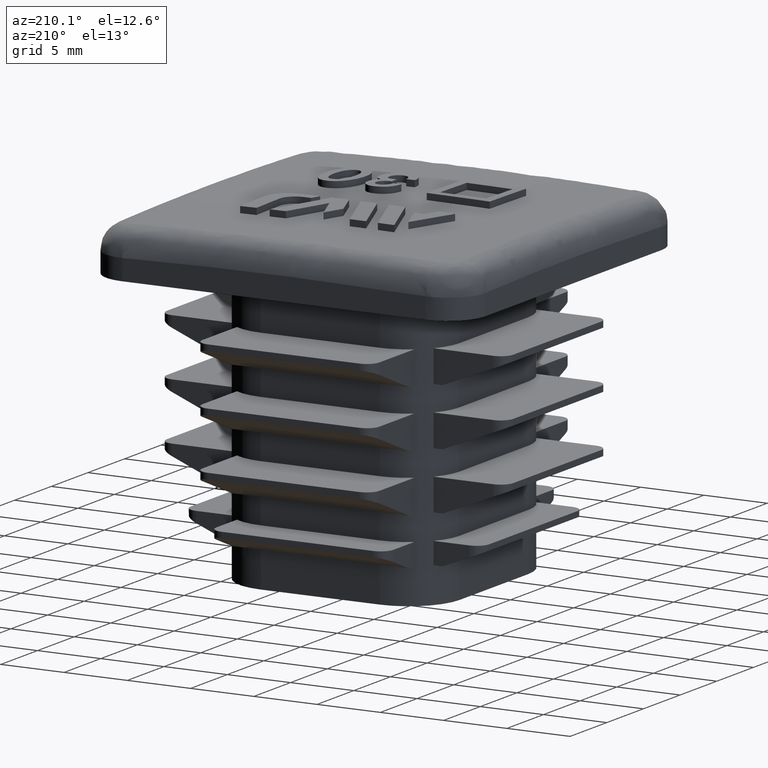
[diagram: clean part render]
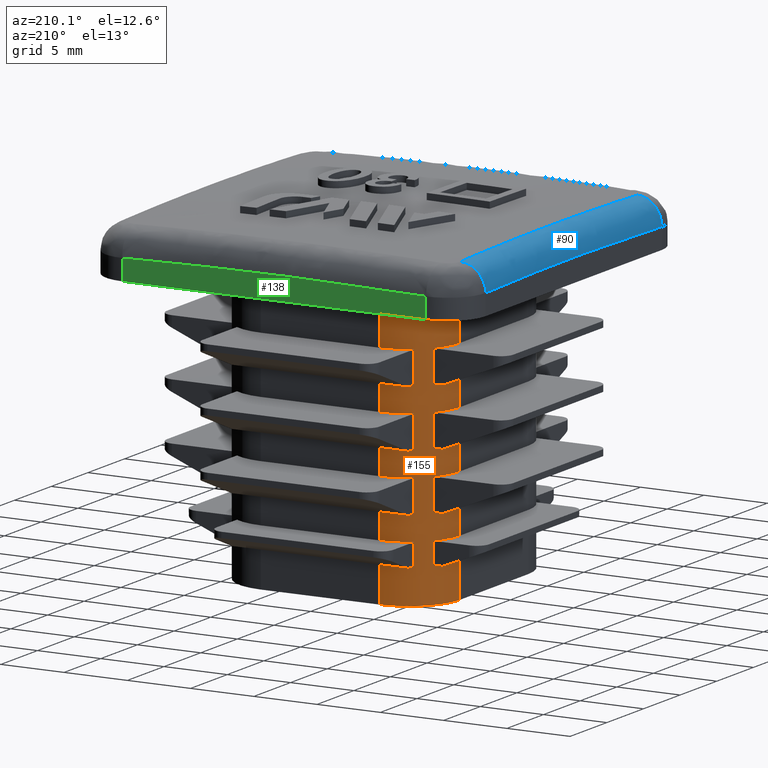
[diagram: same view with three faces highlighted in distinct colors, each labeled with its STEP entity id]
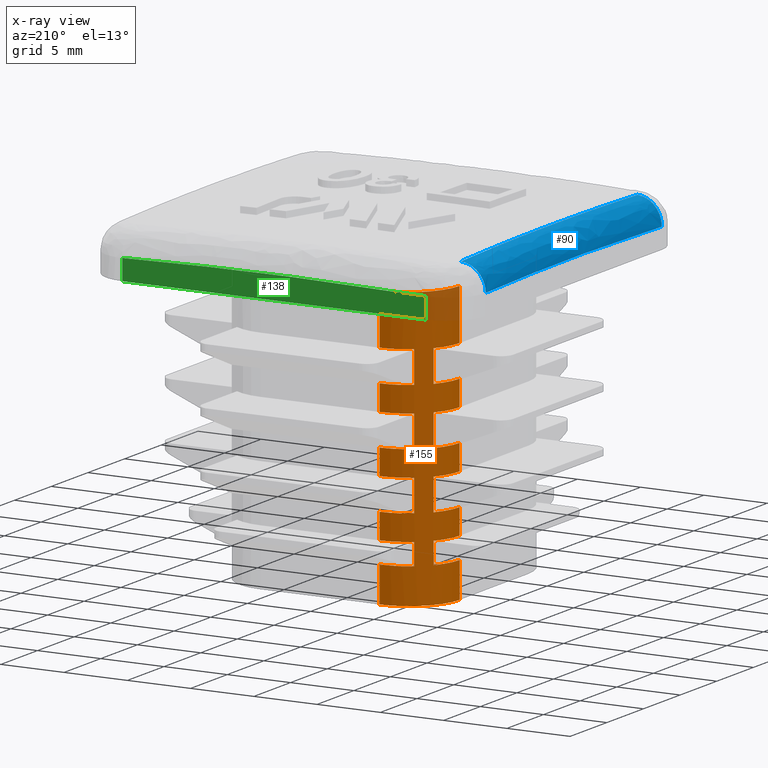
[diagram: x-ray of the same camera — body ghosted, the three highlighted faces saturated]
A machine part, auxiliary view with three faces highlighted in distinct colors.
The next image is the same camera in x-ray (body ghosted, the three faces saturated) — at least one of them is partly hidden behind the body in this view.
Their STEP definitions:

[orange] entity #155 — the highlighted cylindrical surface (partial cylindrical patch) has radius 4 mm, axis along (0, 0, -1).
#155 = ADVANCED_FACE( '', ( #518 ), #519, .T. );
#518 = FACE_OUTER_BOUND( '', #2033, .T. );
#519 = CYLINDRICAL_SURFACE( '', #2034, 4.00000000000000 );
#2033 = EDGE_LOOP( '', ( #3886, #3887, #3888, #3889, #3890, #3891, #3892, #3893, #3894, #3895, #3896, #3897, #3898, #3899, #3900, #3901, #3902, #3903, #3904, #3905, #3906, #3907, #3908, #3909, #3910, #3911, #3912, #3913, #3914, #3915, #3916, #3917, #3918, #3919, #3920, #3921 ) );
#2034 = AXIS2_PLACEMENT_3D( '', #3922, #3923, #3924 );
#3886 = ORIENTED_EDGE( '', *, *, #5648, .F. );
#3887 = ORIENTED_EDGE( '', *, *, #5649, .T. );
#3888 = ORIENTED_EDGE( '', *, *, #5650, .T. );
#3889 = ORIENTED_EDGE( '', *, *, #5651, .T. );
#3890 = ORIENTED_EDGE( '', *, *, #5652, .F. );
#3891 = ORIENTED_EDGE( '', *, *, #5653, .T. );
#3892 = ORIENTED_EDGE( '', *, *, #5654, .T. );
#3893 = ORIENTED_EDGE( '', *, *, #5655, .T. );
#3894 = ORIENTED_EDGE( '', *, *, #5656, .F. );
#3895 = ORIENTED_EDGE( '', *, *, #5657, .T. );
#3896 = ORIENTED_EDGE( '', *, *, #5658, .T. );
#3897 = ORIENTED_EDGE( '', *, *, #5659, .T. );
#3898 = ORIENTED_EDGE( '', *, *, #5660, .F. );
#3899 = ORIENTED_EDGE( '', *, *, #5661, .T. );
#3900 = ORIENTED_EDGE( '', *, *, #5662, .T. );
#3901 = ORIENTED_EDGE( '', *, *, #5663, .T. );
#3902 = ORIENTED_EDGE( '', *, *, #5664, .F. );
#3903 = ORIENTED_EDGE( '', *, *, #5665, .T. );
#3904 = ORIENTED_EDGE( '', *, *, #5666, .T. );
#3905 = ORIENTED_EDGE( '', *, *, #5667, .T. );
#3906 = ORIENTED_EDGE( '', *, *, #5668, .F. );
#3907 = ORIENTED_EDGE( '', *, *, #5669, .T. );
#3908 = ORIENTED_EDGE( '', *, *, #5670, .T. );
#3909 = ORIENTED_EDGE( '', *, *, #5470, .F. );
#3910 = ORIENTED_EDGE( '', *, *, #5671, .F. );
#3911 = ORIENTED_EDGE( '', *, *, #5672, .T. );
#3912 = ORIENTED_EDGE( '', *, *, #5673, .T. );
#3913 = ORIENTED_EDGE( '', *, *, #5674, .T. );
#3914 = ORIENTED_EDGE( '', *, *, #5675, .F. );
#3915 = ORIENTED_EDGE( '', *, *, #5676, .T. );
#3916 = ORIENTED_EDGE( '', *, *, #5677, .T. );
#3917 = ORIENTED_EDGE( '', *, *, #5678, .T. );
#3918 = ORIENTED_EDGE( '', *, *, #5679, .F. );
#3919 = ORIENTED_EDGE( '', *, *, #5680, .T. );
#3920 = ORIENTED_EDGE( '', *, *, #5681, .T. );
#3921 = ORIENTED_EDGE( '', *, *, #5682, .T. );
#3922 = CARTESIAN_POINT( '', ( -4.70000000000000, 4.70000000000000, 0.000000000000000 ) );
#3923 = DIRECTION( '', ( 0.000000000000000, 0.000000000000000, -1.00000000000000 ) );
#3924 = DIRECTION( '', ( 0.000000000000000, -1.00000000000000, 0.000000000000000 ) );
#5470 = EDGE_CURVE( '', #6258, #6245, #6260, .T. );
#5648 = EDGE_CURVE( '', #6550, #6551, #6552, .T. );
#5649 = EDGE_CURVE( '', #6550, #6553, #6554, .F. );
#5650 = EDGE_CURVE( '', #6553, #6555, #6556, .F. );
#5651 = EDGE_CURVE( '', #6555, #6557, #6558, .F. );
#5652 = EDGE_CURVE( '', #6559, #6557, #6560, .T. );
#5653 = EDGE_CURVE( '', #6559, #6561, #6562, .T. );
#5654 = EDGE_CURVE( '', #6561, #6563, #6564, .T. );
#5655 = EDGE_CURVE( '', #6563, #6565, #6566, .F. );
#5656 = EDGE_CURVE( '', #6567, #6565, #6568, .F. );
#5657 = EDGE_CURVE( '', #6567, #6569, #6570, .F. );
#5658 = EDGE_CURVE( '', #6569, #6571, #6572, .T. );
#5659 = EDGE_CURVE( '', #6571, #6573, #6574, .F. );
#5660 = EDGE_CURVE( '', #6575, #6573, #6576, .F. );
#5661 = EDGE_CURVE( '', #6575, #6577, #6578, .F. );
#5662 = EDGE_CURVE( '', #6577, #6579, #6580, .T. );
#5663 = EDGE_CURVE( '', #6579, #6581, #6582, .F. );
#5664 = EDGE_CURVE( '', #6583, #6581, #6584, .F. );
#5665 = EDGE_CURVE( '', #6583, #6585, #6586, .F. );
#5666 = EDGE_CURVE( '', #6585, #6587, #6588, .T. );
#5667 = EDGE_CURVE( '', #6587, #6589, #6590, .F. );
#5668 = EDGE_CURVE( '', #6591, #6589, #6592, .F. );
#5669 = EDGE_CURVE( '', #6591, #6593, #6594, .F. );
#5670 = EDGE_CURVE( '', #6593, #6245, #6595, .T. );
#5671 = EDGE_CURVE( '', #6596, #6258, #6597, .T. );
#5672 = EDGE_CURVE( '', #6596, #6598, #6599, .F. );
#5673 = EDGE_CURVE( '', #6598, #6600, #6601, .F. );
#5674 = EDGE_CURVE( '', #6600, #6602, #6603, .F. );
#5675 = EDGE_CURVE( '', #6604, #6602, #6605, .T. );
#5676 = EDGE_CURVE( '', #6604, #6606, #6607, .F. );
#5677 = EDGE_CURVE( '', #6606, #6608, #6609, .F. );
#5678 = EDGE_CURVE( '', #6608, #6610, #6611, .F. );
#5679 = EDGE_CURVE( '', #6612, #6610, #6613, .T. );
#5680 = EDGE_CURVE( '', #6612, #6614, #6615, .F. );
#5681 = EDGE_CURVE( '', #6614, #6616, #6617, .F. );
#5682 = EDGE_CURVE( '', #6616, #6551, #6618, .F. );
#6245 = VERTEX_POINT( '', #8303 );
#6258 = VERTEX_POINT( '', #8319 );
#6260 = CIRCLE( '', #8322, 4.00000000000000 );
#6550 = VERTEX_POINT( '', #9027 );
#6551 = VERTEX_POINT( '', #9028 );
#6552 = LINE( '', #9029, #9030 );
#6553 = VERTEX_POINT( '', #9031 );
#6554 = CIRCLE( '', #9032, 4.00000000000000 );
#6555 = VERTEX_POINT( '', #9033 );
#6556 = LINE( '', #9034, #9035 );
#6557 = VERTEX_POINT( '', #9036 );
#6558 = CIRCLE( '', #9037, 4.00000000000000 );
#6559 = VERTEX_POINT( '', #9038 );
#6560 = LINE( '', #9039, #9040 );
#6561 = VERTEX_POINT( '', #9041 );
#6562 = CIRCLE( '', #9042, 4.00000000000000 );
#6563 = VERTEX_POINT( '', #9043 );
#6564 = LINE( '', #9044, #9045 );
#6565 = VERTEX_POINT( '', #9046 );
#6566 = CIRCLE( '', #9047, 4.00000000000000 );
#6567 = VERTEX_POINT( '', #9048 );
#6568 = LINE( '', #9049, #9050 );
#6569 = VERTEX_POINT( '', #9051 );
#6570 = CIRCLE( '', #9052, 4.00000000000000 );
#6571 = VERTEX_POINT( '', #9053 );
#6572 = LINE( '', #9054, #9055 );
#6573 = VERTEX_POINT( '', #9056 );
#6574 = CIRCLE( '', #9057, 4.00000000000000 );
#6575 = VERTEX_POINT( '', #9058 );
#6576 = LINE( '', #9059, #9060 );
#6577 = VERTEX_POINT( '', #9061 );
#6578 = CIRCLE( '', #9062, 4.00000000000000 );
#6579 = VERTEX_POINT( '', #9063 );
#6580 = LINE( '', #9064, #9065 );
#6581 = VERTEX_POINT( '', #9066 );
#6582 = CIRCLE( '', #9067, 4.00000000000000 );
#6583 = VERTEX_POINT( '', #9068 );
#6584 = LINE( '', #9069, #9070 );
#6585 = VERTEX_POINT( '', #9071 );
#6586 = CIRCLE( '', #9072, 4.00000000000000 );
#6587 = VERTEX_POINT( '', #9073 );
#6588 = LINE( '', #9074, #9075 );
#6589 = VERTEX_POINT( '', #9076 );
#6590 = CIRCLE( '', #9077, 4.00000000000000 );
#6591 = VERTEX_POINT( '', #9078 );
#6592 = LINE( '', #9079, #9080 );
#6593 = VERTEX_POINT( '', #9081 );
#6594 = CIRCLE( '', #9082, 4.00000000000000 );
#6595 = LINE( '', #9083, #9084 );
#6596 = VERTEX_POINT( '', #9085 );
#6597 = LINE( '', #9086, #9087 );
#6598 = VERTEX_POINT( '', #9088 );
#6599 = CIRCLE( '', #9089, 4.00000000000000 );
#6600 = VERTEX_POINT( '', #9090 );
#6601 = LINE( '', #9091, #9092 );
#6602 = VERTEX_POINT( '', #9093 );
#6603 = CIRCLE( '', #9094, 4.00000000000000 );
#6604 = VERTEX_POINT( '', #9095 );
#6605 = LINE( '', #9096, #9097 );
#6606 = VERTEX_POINT( '', #9098 );
#6607 = CIRCLE( '', #9099, 4.00000000000000 );
#6608 = VERTEX_POINT( '', #9100 );
#6609 = LINE( '', #9101, #9102 );
#6610 = VERTEX_POINT( '', #9103 );
#6611 = CIRCLE( '', #9104, 4.00000000000000 );
#6612 = VERTEX_POINT( '', #9105 );
#6613 = LINE( '', #9106, #9107 );
#6614 = VERTEX_POINT( '', #9108 );
#6615 = CIRCLE( '', #9109, 4.00000000000000 );
#6616 = VERTEX_POINT( '', #9110 );
#6617 = LINE( '', #9111, #9112 );
#6618 = CIRCLE( '', #9113, 4.00000000000000 );
#8303 = CARTESIAN_POINT( '', ( -8.70000000000000, 4.70000000000000, 22.0000000000000 ) );
#8319 = CARTESIAN_POINT( '', ( -4.70000000000000, 8.70000000000000, 22.0000000000000 ) );
#8322 = AXIS2_PLACEMENT_3D( '', #10409, #10410, #10411 );
#9027 = CARTESIAN_POINT( '', ( -4.70000000000000, 8.70000000000000, 4.49999999999999 ) );
#9028 = CARTESIAN_POINT( '', ( -4.70000000000000, 8.70000000000004, 6.50000000000002 ) );
#9029 = CARTESIAN_POINT( '', ( -4.70000000000000, 8.70000000000000, 0.000000000000000 ) );
#9030 = VECTOR( '', #10641, 1000.00000000000 );
#9031 = CARTESIAN_POINT( '', ( -7.00000000000000, 7.97261363439071, 4.49999999999999 ) );
#9032 = AXIS2_PLACEMENT_3D( '', #10642, #10643, #10644 );
#9033 = CARTESIAN_POINT( '', ( -7.00000000000000, 7.97261363439071, 2.80000000000000 ) );
#9034 = CARTESIAN_POINT( '', ( -7.00000000000000, 7.97261363439071, 0.000000000000000 ) );
#9035 = VECTOR( '', #10645, 1000.00000000000 );
#9036 = CARTESIAN_POINT( '', ( -4.70000000000000, 8.70000000000000, 2.80000000000000 ) );
#9037 = AXIS2_PLACEMENT_3D( '', #10646, #10647, #10648 );
#9038 = CARTESIAN_POINT( '', ( -4.70000000000000, 8.70000000000000, 0.000000000000000 ) );
#9039 = CARTESIAN_POINT( '', ( -4.70000000000000, 8.70000000000000, 0.000000000000000 ) );
#9040 = VECTOR( '', #10649, 1000.00000000000 );
#9041 = CARTESIAN_POINT( '', ( -8.70000000000000, 4.70000000000000, 0.000000000000000 ) );
#9042 = AXIS2_PLACEMENT_3D( '', #10650, #10651, #10652 );
#9043 = CARTESIAN_POINT( '', ( -8.70000000000000, 4.70000000000000, 2.80000000000000 ) );
#9044 = CARTESIAN_POINT( '', ( -8.70000000000000, 4.70000000000000, 0.000000000000000 ) );
#9045 = VECTOR( '', #10653, 1000.00000000000 );
#9046 = CARTESIAN_POINT( '', ( -7.97261363439071, 7.00000000000000, 2.80000000000000 ) );
#9047 = AXIS2_PLACEMENT_3D( '', #10654, #10655, #10656 );
#9048 = CARTESIAN_POINT( '', ( -7.97261363439071, 7.00000000000000, 4.49999999999999 ) );
#9049 = CARTESIAN_POINT( '', ( -7.97261363439071, 7.00000000000000, 0.000000000000000 ) );
#9050 = VECTOR( '', #10657, 1000.00000000000 );
#9051 = CARTESIAN_POINT( '', ( -8.70000000000000, 4.70000000000000, 4.49999999999999 ) );
#9052 = AXIS2_PLACEMENT_3D( '', #10658, #10659, #10660 );
#9053 = CARTESIAN_POINT( '', ( -8.70000000000004, 4.70000000000000, 6.50000000000002 ) );
#9054 = CARTESIAN_POINT( '', ( -8.70000000000000, 4.70000000000000, 0.000000000000000 ) );
#9055 = VECTOR( '', #10661, 1000.00000000000 );
#9056 = CARTESIAN_POINT( '', ( -7.97261363439072, 7.00000000000000, 6.50000000000000 ) );
#9057 = AXIS2_PLACEMENT_3D( '', #10662, #10663, #10664 );
#9058 = CARTESIAN_POINT( '', ( -7.97261363439072, 7.00000000000000, 9.00000000000001 ) );
#9059 = CARTESIAN_POINT( '', ( -7.97261363439072, 7.00000000000000, 0.000000000000000 ) );
#9060 = VECTOR( '', #10665, 1000.00000000000 );
#9061 = CARTESIAN_POINT( '', ( -8.70000000000000, 4.70000000000000, 9.00000000000001 ) );
#9062 = AXIS2_PLACEMENT_3D( '', #10666, #10667, #10668 );
#9063 = CARTESIAN_POINT( '', ( -8.70000000000002, 4.70000000000000, 11.0000000000000 ) );
#9064 = CARTESIAN_POINT( '', ( -8.70000000000000, 4.70000000000000, 0.000000000000000 ) );
#9065 = VECTOR( '', #10669, 1000.00000000000 );
#9066 = CARTESIAN_POINT( '', ( -7.97261363439072, 7.00000000000000, 11.0000000000000 ) );
#9067 = AXIS2_PLACEMENT_3D( '', #10670, #10671, #10672 );
#9068 = CARTESIAN_POINT( '', ( -7.97261363439072, 7.00000000000000, 13.5000000000000 ) );
#9069 = CARTESIAN_POINT( '', ( -7.97261363439072, 7.00000000000000, 0.000000000000000 ) );
#9070 = VECTOR( '', #10673, 1000.00000000000 );
#9071 = CARTESIAN_POINT( '', ( -8.70000000000000, 4.70000000000000, 13.5000000000000 ) );
#9072 = AXIS2_PLACEMENT_3D( '', #10674, #10675, #10676 );
#9073 = CARTESIAN_POINT( '', ( -8.70000000000004, 4.70000000000000, 15.5000000000000 ) );
#9074 = CARTESIAN_POINT( '', ( -8.70000000000000, 4.70000000000000, 0.000000000000000 ) );
#9075 = VECTOR( '', #10677, 1000.00000000000 );
#9076 = CARTESIAN_POINT( '', ( -7.97261363439071, 7.00000000000000, 15.5000000000000 ) );
#9077 = AXIS2_PLACEMENT_3D( '', #10678, #10679, #10680 );
#9078 = CARTESIAN_POINT( '', ( -7.97261363439071, 7.00000000000000, 18.0000000000000 ) );
#9079 = CARTESIAN_POINT( '', ( -7.97261363439071, 7.00000000000000, 0.000000000000000 ) );
#9080 = VECTOR( '', #10681, 1000.00000000000 );
#9081 = CARTESIAN_POINT( '', ( -8.70000000000000, 4.70000000000000, 18.0000000000000 ) );
#9082 = AXIS2_PLACEMENT_3D( '', #10682, #10683, #10684 );
#9083 = CARTESIAN_POINT( '', ( -8.70000000000000, 4.70000000000000, 0.000000000000000 ) );
#9084 = VECTOR( '', #10685, 1000.00000000000 );
#9085 = CARTESIAN_POINT( '', ( -4.70000000000000, 8.70000000000000, 18.0000000000000 ) );
#9086 = CARTESIAN_POINT( '', ( -4.70000000000000, 8.70000000000000, 0.000000000000000 ) );
#9087 = VECTOR( '', #10686, 1000.00000000000 );
#9088 = CARTESIAN_POINT( '', ( -7.00000000000000, 7.97261363439071, 18.0000000000000 ) );
#9089 = AXIS2_PLACEMENT_3D( '', #10687, #10688, #10689 );
#9090 = CARTESIAN_POINT( '', ( -7.00000000000000, 7.97261363439071, 15.5000000000000 ) );
#9091 = CARTESIAN_POINT( '', ( -7.00000000000000, 7.97261363439071, 0.000000000000000 ) );
#9092 = VECTOR( '', #10690, 1000.00000000000 );
#9093 = CARTESIAN_POINT( '', ( -4.70000000000000, 8.70000000000004, 15.5000000000000 ) );
#9094 = AXIS2_PLACEMENT_3D( '', #10691, #10692, #10693 );
#9095 = CARTESIAN_POINT( '', ( -4.70000000000000, 8.70000000000000, 13.5000000000000 ) );
#9096 = CARTESIAN_POINT( '', ( -4.70000000000000, 8.70000000000000, 0.000000000000000 ) );
#9097 = VECTOR( '', #10694, 1000.00000000000 );
#9098 = CARTESIAN_POINT( '', ( -7.00000000000000, 7.97261363439071, 13.5000000000000 ) );
#9099 = AXIS2_PLACEMENT_3D( '', #10695, #10696, #10697 );
#9100 = CARTESIAN_POINT( '', ( -7.00000000000000, 7.97261363439071, 11.0000000000000 ) );
#9101 = CARTESIAN_POINT( '', ( -7.00000000000000, 7.97261363439071, 0.000000000000000 ) );
#9102 = VECTOR( '', #10698, 1000.00000000000 );
#9103 = CARTESIAN_POINT( '', ( -4.70000000000000, 8.70000000000002, 11.0000000000000 ) );
#9104 = AXIS2_PLACEMENT_3D( '', #10699, #10700, #10701 );
#9105 = CARTESIAN_POINT( '', ( -4.70000000000000, 8.70000000000000, 9.00000000000001 ) );
#9106 = CARTESIAN_POINT( '', ( -4.70000000000000, 8.70000000000000, 0.000000000000000 ) );
#9107 = VECTOR( '', #10702, 1000.00000000000 );
#9108 = CARTESIAN_POINT( '', ( -7.00000000000000, 7.97261363439071, 9.00000000000001 ) );
#9109 = AXIS2_PLACEMENT_3D( '', #10703, #10704, #10705 );
#9110 = CARTESIAN_POINT( '', ( -7.00000000000000, 7.97261363439071, 6.50000000000000 ) );
#9111 = CARTESIAN_POINT( '', ( -7.00000000000000, 7.97261363439071, 0.000000000000000 ) );
#9112 = VECTOR( '', #10706, 1000.00000000000 );
#9113 = AXIS2_PLACEMENT_3D( '', #10707, #10708, #10709 );
#10409 = CARTESIAN_POINT( '', ( -4.70000000000000, 4.70000000000000, 22.0000000000000 ) );
#10410 = DIRECTION( '', ( 0.000000000000000, 0.000000000000000, 1.00000000000000 ) );
#10411 = DIRECTION( '', ( 2.16840434497101E-016, 1.00000000000000, 0.000000000000000 ) );
#10641 = DIRECTION( '', ( 0.000000000000000, 0.000000000000000, 1.00000000000000 ) );
#10642 = CARTESIAN_POINT( '', ( -4.70000000000000, 4.70000000000000, 4.49999999999999 ) );
#10643 = DIRECTION( '', ( 8.62816615085482E-032, -6.12303176911189E-017, -1.00000000000000 ) );
#10644 = DIRECTION( '', ( 0.000000000000000, 1.00000000000000, -6.12303176911189E-017 ) );
#10645 = DIRECTION( '', ( 0.000000000000000, 0.000000000000000, 1.00000000000000 ) );
#10646 = CARTESIAN_POINT( '', ( -4.70000000000000, 4.70000000000000, 2.80000000000000 ) );
#10647 = DIRECTION( '', ( -8.62816615085482E-032, 6.12303176911189E-017, 1.00000000000000 ) );
#10648 = DIRECTION( '', ( 0.000000000000000, -1.00000000000000, 6.12303176911189E-017 ) );
#10649 = DIRECTION( '', ( 0.000000000000000, 0.000000000000000, 1.00000000000000 ) );
#10650 = CARTESIAN_POINT( '', ( -4.70000000000000, 4.70000000000000, 0.000000000000000 ) );
#10651 = DIRECTION( '', ( 0.000000000000000, 0.000000000000000, 1.00000000000000 ) );
#10652 = DIRECTION( '', ( 2.16840434497101E-016, 1.00000000000000, 0.000000000000000 ) );
#10653 = DIRECTION( '', ( 0.000000000000000, 0.000000000000000, 1.00000000000000 ) );
#10654 = CARTESIAN_POINT( '', ( -4.70000000000000, 4.70000000000000, 2.80000000000000 ) );
#10655 = DIRECTION( '', ( -7.49830360911070E-033, 6.12303176911188E-017, 1.00000000000000 ) );
#10656 = DIRECTION( '', ( 0.000000000000000, -1.00000000000000, 6.12303176911188E-017 ) );
#10657 = DIRECTION( '', ( 0.000000000000000, 0.000000000000000, 1.00000000000000 ) );
#10658 = CARTESIAN_POINT( '', ( -4.70000000000000, 4.70000000000000, 4.49999999999999 ) );
#10659 = DIRECTION( '', ( 7.49830360911070E-033, -6.12303176911188E-017, -1.00000000000000 ) );
#10660 = DIRECTION( '', ( 0.000000000000000, 1.00000000000000, -6.12303176911188E-017 ) );
#10661 = DIRECTION( '', ( 0.000000000000000, 0.000000000000000, 1.00000000000000 ) );
#10662 = CARTESIAN_POINT( '', ( -4.70000000000000, 4.70000000000000, 6.50000000000000 ) );
#10663 = DIRECTION( '', ( -7.49830360911070E-033, 6.12303176911188E-017, 1.00000000000000 ) );
#10664 = DIRECTION( '', ( 0.000000000000000, -1.00000000000000, 6.12303176911188E-017 ) );
#10665 = DIRECTION( '', ( 0.000000000000000, 0.000000000000000, 1.00000000000000 ) );
#10666 = CARTESIAN_POINT( '', ( -4.70000000000000, 4.70000000000000, 9.00000000000001 ) );
#10667 = DIRECTION( '', ( 7.49830360911070E-033, -6.12303176911188E-017, -1.00000000000000 ) );
#10668 = DIRECTION( '', ( 0.000000000000000, 1.00000000000000, -6.12303176911188E-017 ) );
#10669 = DIRECTION( '', ( 0.000000000000000, 0.000000000000000, 1.00000000000000 ) );
#10670 = CARTESIAN_POINT( '', ( -4.70000000000000, 4.70000000000000, 11.0000000000000 ) );
#10671 = DIRECTION( '', ( -7.49830360911070E-033, 6.12303176911188E-017, 1.00000000000000 ) );
#10672 = DIRECTION( '', ( 0.000000000000000, -1.00000000000000, 6.12303176911188E-017 ) );
#10673 = DIRECTION( '', ( 0.000000000000000, 0.000000000000000, 1.00000000000000 ) );
#10674 = CARTESIAN_POINT( '', ( -4.70000000000000, 4.70000000000000, 13.5000000000000 ) );
#10675 = DIRECTION( '', ( 7.49830360911070E-033, -6.12303176911188E-017, -1.00000000000000 ) );
#10676 = DIRECTION( '', ( 0.000000000000000, 1.00000000000000, -6.12303176911188E-017 ) );
#10677 = DIRECTION( '', ( 0.000000000000000, 0.000000000000000, 1.00000000000000 ) );
#10678 = CARTESIAN_POINT( '', ( -4.70000000000000, 4.70000000000000, 15.5000000000000 ) );
#10679 = DIRECTION( '', ( -7.49830360911070E-033, 6.12303176911188E-017, 1.00000000000000 ) );
#10680 = DIRECTION( '', ( 0.000000000000000, -1.00000000000000, 6.12303176911188E-017 ) );
#10681 = DIRECTION( '', ( 0.000000000000000, 0.000000000000000, 1.00000000000000 ) );
#10682 = CARTESIAN_POINT( '', ( -4.70000000000000, 4.70000000000000, 18.0000000000000 ) );
#10683 = DIRECTION( '', ( 7.49830360911070E-033, -6.12303176911188E-017, -1.00000000000000 ) );
#10684 = DIRECTION( '', ( 0.000000000000000, 1.00000000000000, -6.12303176911188E-017 ) );
#10685 = DIRECTION( '', ( 0.000000000000000, 0.000000000000000, 1.00000000000000 ) );
#10686 = DIRECTION( '', ( 0.000000000000000, 0.000000000000000, 1.00000000000000 ) );
#10687 = CARTESIAN_POINT( '', ( -4.70000000000000, 4.70000000000000, 18.0000000000000 ) );
#10688 = DIRECTION( '', ( 8.62816615085482E-032, -6.12303176911189E-017, -1.00000000000000 ) );
#10689 = DIRECTION( '', ( 0.000000000000000, 1.00000000000000, -6.12303176911189E-017 ) );
#10690 = DIRECTION( '', ( 0.000000000000000, 0.000000000000000, 1.00000000000000 ) );
#10691 = CARTESIAN_POINT( '', ( -4.70000000000000, 4.70000000000000, 15.5000000000000 ) );
#10692 = DIRECTION( '', ( -8.62816615085482E-032, 6.12303176911189E-017, 1.00000000000000 ) );
#10693 = DIRECTION( '', ( 0.000000000000000, -1.00000000000000, 6.12303176911189E-017 ) );
#10694 = DIRECTION( '', ( 0.000000000000000, 0.000000000000000, 1.00000000000000 ) );
#10695 = CARTESIAN_POINT( '', ( -4.70000000000000, 4.70000000000000, 13.5000000000000 ) );
#10696 = DIRECTION( '', ( 8.62816615085482E-032, -6.12303176911189E-017, -1.00000000000000 ) );
#10697 = DIRECTION( '', ( 0.000000000000000, 1.00000000000000, -6.12303176911189E-017 ) );
#10698 = DIRECTION( '', ( 0.000000000000000, 0.000000000000000, 1.00000000000000 ) );
#10699 = CARTESIAN_POINT( '', ( -4.70000000000000, 4.70000000000000, 11.0000000000000 ) );
#10700 = DIRECTION( '', ( -8.62816615085482E-032, 6.12303176911189E-017, 1.00000000000000 ) );
#10701 = DIRECTION( '', ( 0.000000000000000, -1.00000000000000, 6.12303176911189E-017 ) );
#10702 = DIRECTION( '', ( 0.000000000000000, 0.000000000000000, 1.00000000000000 ) );
#10703 = CARTESIAN_POINT( '', ( -4.70000000000000, 4.70000000000000, 9.00000000000001 ) );
#10704 = DIRECTION( '', ( 8.62816615085482E-032, -6.12303176911189E-017, -1.00000000000000 ) );
#10705 = DIRECTION( '', ( 0.000000000000000, 1.00000000000000, -6.12303176911189E-017 ) );
#10706 = DIRECTION( '', ( 0.000000000000000, 0.000000000000000, 1.00000000000000 ) );
#10707 = CARTESIAN_POINT( '', ( -4.70000000000000, 4.70000000000000, 6.50000000000000 ) );
#10708 = DIRECTION( '', ( -8.62816615085482E-032, 6.12303176911189E-017, 1.00000000000000 ) );
#10709 = DIRECTION( '', ( 0.000000000000000, -1.00000000000000, 6.12303176911189E-017 ) );

[blue] entity #90 — the highlighted face is a freeform B-spline surface patch.
#90 = ADVANCED_FACE( '', ( #386 ), #387, .T. );
#386 = FACE_OUTER_BOUND( '', #1084, .T. );
#387 = ( B_SPLINE_SURFACE( 3, 2, ( ( #1086, #1087, #1088 ), ( #1089, #1090, #1091 ), ( #1092, #1093, #1094 ), ( #1095, #1096, #1097 ), ( #1098, #1099, #1100 ), ( #1101, #1102, #1103 ), ( #1104, #1105, #1106 ), ( #1107, #1108, #1109 ), ( #1110, #1111, #1112 ), ( #1113, #1114, #1115 ), ( #1116, #1117, #1118 ), ( #1119, #1120, #1121 ) ), .UNSPECIFIED., .F., .F., .F. )B_SPLINE_SURFACE_WITH_KNOTS( ( 4, 2, 2, 2, 2, 4 ), ( 3, 3 ), ( 0.000000000000000, 0.00600017704993037, 0.0120003540998607, 0.0150004426248259, 0.0180005311497911, 0.0240007081997215 ), ( 0.000000000000000, 1.00000000000000 ), .UNSPECIFIED. )RATIONAL_B_SPLINE_SURFACE( ( ( 1.00000000000000, 0.718173196535329, 1.00000000000000 ), ( 1.00000000000000, 0.718143772612689, 1.00000000000000 ), ( 1.00000000000000, 0.718109651975224, 1.00000000000000 ), ( 1.00000000000000, 0.718053353490006, 1.00000000000000 ), ( 1.00000000000000, 0.718032744471590, 1.00000000000000 ), ( 1.00000000000000, 0.718032744471590, 1.00000000000000 ), ( 1.00000000000000, 0.718037607021252, 1.00000000000000 ), ( 1.00000000000000, 0.718055003589058, 1.00000000000000 ), ( 1.00000000000000, 0.718067417675483, 1.00000000000000 ), ( 1.00000000000000, 0.718109647988902, 1.00000000000000 ), ( 1.00000000000000, 0.718143773229654, 1.00000000000000 ), ( 1.00000000000000, 0.718173196535328, 1.00000000000000 ) ) )BOUNDED_SURFACE(  )REPRESENTATION_ITEM( '' )GEOMETRIC_REPRESENTATION_ITEM(  )SURFACE(  ) );
#1084 = EDGE_LOOP( '', ( #3350, #3351, #3352, #3353 ) );
#1086 = CARTESIAN_POINT( '', ( -15.0000000000000, 12.0000000000000, 23.6335265275817 ) );
#1087 = CARTESIAN_POINT( '', ( -15.0000000000000, 12.0564568515434, 25.5705774477245 ) );
#1088 = CARTESIAN_POINT( '', ( -13.0630909608871, 12.0582378100496, 25.6316826496440 ) );
#1089 = CARTESIAN_POINT( '', ( -15.0000000000000, 10.0003267724881, 23.6918085549560 ) );
#1090 = CARTESIAN_POINT( '', ( -15.0000000000104, 10.0472257041456, 25.6293043573864 ) );
#1091 = CARTESIAN_POINT( '', ( -13.0629195634226, 10.0487002031787, 25.6902575937011 ) );
#1092 = CARTESIAN_POINT( '', ( -15.0000000000000, 8.00054077741846, 23.7352673322333 ) );
#1093 = CARTESIAN_POINT( '', ( -14.9999999999965, 8.03794665685296, 25.6731567749510 ) );
#1094 = CARTESIAN_POINT( '', ( -13.0627258858686, 8.03911905504669, 25.7339347146684 ) );
#1095 = CARTESIAN_POINT( '', ( -15.0000000000000, 4.00074684231143, 23.7930564127972 ) );
#1096 = CARTESIAN_POINT( '', ( -15.0000000000035, 4.01934673143844, 25.7315313560091 ) );
#1097 = CARTESIAN_POINT( '', ( -13.0624024706653, 4.01992631068884, 25.7920141925261 ) );
#1098 = CARTESIAN_POINT( '', ( -15.0000000000000, 2.00073916068089, 23.8074128812085 ) );
#1099 = CARTESIAN_POINT( '', ( -15.0000000000035, 2.01003536667221, 25.7460690656101 ) );
#1100 = CARTESIAN_POINT( '', ( -13.0622841109361, 2.01032486953078, 25.8064428040089 ) );
#1101 = CARTESIAN_POINT( '', ( -15.0000000000000, -0.999436324329904, 23.8074173548970 ) );
#1102 = CARTESIAN_POINT( '', ( -14.9999999999983, -1.00408009105810, 25.7460735926965 ) );
#1103 = CARTESIAN_POINT( '', ( -13.0622840773324, -1.00422470744715, 25.8064473002291 ) );
#1104 = CARTESIAN_POINT( '', ( -15.0000000000000, -1.99952218369607, 23.8038255805832 ) );
#1105 = CARTESIAN_POINT( '', ( -15.0000000000017, -2.00881316078348, 25.7424380453099 ) );
#1106 = CARTESIAN_POINT( '', ( -13.0623120200855, -2.00910251405255, 25.8028374767597 ) );
#1107 = CARTESIAN_POINT( '', ( -15.0000000000000, -3.99974884747071, 23.7894270965710 ) );
#1108 = CARTESIAN_POINT( '', ( -14.9999999999983, -4.01836660654618, 25.7278754629308 ) );
#1109 = CARTESIAN_POINT( '', ( -13.0624119524136, -4.01894747538753, 25.7883666385994 ) );
#1110 = CARTESIAN_POINT( '', ( -15.0000000000000, -4.99990744285938, 23.7786190966047 ) );
#1111 = CARTESIAN_POINT( '', ( -14.9999999999983, -5.02320513365903, 25.7169477695408 ) );
#1112 = CARTESIAN_POINT( '', ( -13.0624832645144, -5.02393280141354, 25.7775043270545 ) );
#1113 = CARTESIAN_POINT( '', ( -15.0000000000000, -8.00035043795834, 23.7352729397983 ) );
#1114 = CARTESIAN_POINT( '', ( -15.0000000000035, -8.03775540543837, 25.6731624313387 ) );
#1115 = CARTESIAN_POINT( '', ( -13.0627258629716, -8.03892777433726, 25.7339403503632 ) );
#1116 = CARTESIAN_POINT( '', ( -15.0000000000000, -10.0003338321923, 23.6918083491886 ) );
#1117 = CARTESIAN_POINT( '', ( -14.9999999999861, -10.0472327980091, 25.6293041500463 ) );
#1118 = CARTESIAN_POINT( '', ( -13.0629195640261, -10.0487072980613, 25.6902573868962 ) );
#1119 = CARTESIAN_POINT( '', ( -15.0000000000000, -12.0000000000000, 23.6335265275817 ) );
#1120 = CARTESIAN_POINT( '', ( -15.0000000000000, -12.0564568515434, 25.5705774477244 ) );
#1121 = CARTESIAN_POINT( '', ( -13.0630909608871, -12.0582378100496, 25.6316826496439 ) );
#3350 = ORIENTED_EDGE( '', *, *, #5478, .T. );
#3351 = ORIENTED_EDGE( '', *, *, #5432, .F. );
#3352 = ORIENTED_EDGE( '', *, *, #5479, .T. );
#3353 = ORIENTED_EDGE( '', *, *, #5480, .F. );
#5432 = EDGE_CURVE( '', #6184, #6186, #6187, .T. );
#5478 = EDGE_CURVE( '', #6240, #6186, #6274, .T. );
#5479 = EDGE_CURVE( '', #6184, #6275, #6276, .T. );
#5480 = EDGE_CURVE( '', #6240, #6275, #6277, .T. );
#6184 = VERTEX_POINT( '', #7917 );
#6186 = VERTEX_POINT( '', #7956 );
#6187 = B_SPLINE_CURVE_WITH_KNOTS( '', 3, ( #7957, #7958, #7959, #7960, #7961, #7962, #7963, #7964, #7965, #7966, #7967, #7968, #7969, #7970 ), .UNSPECIFIED., .F., .F., ( 4, 2, 2, 2, 2, 2, 4 ), ( 0.000000000000000, 0.00602929683142525, 0.0120585936628505, 0.0150732420785631, 0.0165805662864194, 0.0180878904942758, 0.0241171873257010 ), .UNSPECIFIED. );
#6240 = VERTEX_POINT( '', #8255 );
#6274 = CIRCLE( '', #8340, 2.00000000000000 );
#6275 = VERTEX_POINT( '', #8341 );
#6276 = CIRCLE( '', #8342, 2.00000000000000 );
#6277 = B_SPLINE_CURVE_WITH_KNOTS( '', 3, ( #8343, #8344, #8345, #8346, #8347, #8348, #8349, #8350, #8351, #8352, #8353, #8354, #8355 ), .UNSPECIFIED., .F., .F., ( 4, 2, 2, 1, 2, 2, 4 ), ( 0.000000000000000, 0.00600136666173782, 0.00750170832717228, 0.00900204999260674, 0.0120027333234756, 0.0180040999852135, 0.0240054666469513 ), .UNSPECIFIED. );
#7917 = CARTESIAN_POINT( '', ( -13.0630909608871, 12.0582378100496, 25.6316826496440 ) );
#7956 = CARTESIAN_POINT( '', ( -13.0630909608871, -12.0582378100496, 25.6316826496440 ) );
#7957 = CARTESIAN_POINT( '', ( -13.0630909608871, 12.0582378100496, 25.6316826496440 ) );
#7958 = CARTESIAN_POINT( '', ( -13.0629195770531, 10.0488600268049, 25.6902529350872 ) );
#7959 = CARTESIAN_POINT( '', ( -13.0627259090537, 8.03936880402016, 25.7339299240312 ) );
#7960 = CARTESIAN_POINT( '', ( -13.0624024866549, 4.02016339594971, 25.7920119480059 ) );
#7961 = CARTESIAN_POINT( '', ( -13.0622841109516, 2.01044940697193, 25.8064428020597 ) );
#7962 = CARTESIAN_POINT( '', ( -13.0622840773246, -1.00428642452131, 25.8064473012030 ) );
#7963 = CARTESIAN_POINT( '', ( -13.0623120238570, -2.00922587987351, 25.8028369926848 ) );
#7964 = CARTESIAN_POINT( '', ( -13.0623869799728, -3.51667649017741, 25.7919827761782 ) );
#7965 = CARTESIAN_POINT( '', ( -13.0624172851892, -4.01916693471577, 25.7874578209675 ) );
#7966 = CARTESIAN_POINT( '', ( -13.0624856628526, -5.02416169563819, 25.7765867406496 ) );
#7967 = CARTESIAN_POINT( '', ( -13.0625237162462, -5.52667339775832, 25.7702404707053 ) );
#7968 = CARTESIAN_POINT( '', ( -13.0627258861368, -8.03917732539276, 25.7339355644553 ) );
#7969 = CARTESIAN_POINT( '', ( -13.0629195776455, -10.0488669721740, 25.6902527326403 ) );
#7970 = CARTESIAN_POINT( '', ( -13.0630909608871, -12.0582378100496, 25.6316826496439 ) );
#8255 = CARTESIAN_POINT( '', ( -15.0000000000000, -12.0000000000000, 23.6335265275817 ) );
#8340 = AXIS2_PLACEMENT_3D( '', #10425, #10426, #10427 );
#8341 = CARTESIAN_POINT( '', ( -15.0000000000000, 12.0000000000000, 23.6335265275817 ) );
#8342 = AXIS2_PLACEMENT_3D( '', #10428, #10429, #10430 );
#8343 = CARTESIAN_POINT( '', ( -15.0000000000000, -12.0000000000000, 23.6335265275817 ) );
#8344 = CARTESIAN_POINT( '', ( -15.0000000000000, -10.0003338535523, 23.6918083484633 ) );
#8345 = CARTESIAN_POINT( '', ( -15.0000000000000, -8.00035043795858, 23.7352729397973 ) );
#8346 = CARTESIAN_POINT( '', ( -15.0000000000000, -5.49998127537582, 23.7713947371372 ) );
#8347 = CARTESIAN_POINT( '', ( -15.0000000000000, -4.99989659340285, 23.7777088821852 ) );
#8348 = CARTESIAN_POINT( '', ( -15.0000000000000, -3.99975571887205, 23.7885248000160 ) );
#8349 = CARTESIAN_POINT( '', ( -15.0000000000000, -2.49956511338038, 23.8020296933859 ) );
#8350 = CARTESIAN_POINT( '', ( -15.0000000000000, -0.999436324329331, 23.8074173549139 ) );
#8351 = CARTESIAN_POINT( '', ( -15.0000000000000, 2.00073916067975, 23.8074128811748 ) );
#8352 = CARTESIAN_POINT( '', ( -15.0000000000000, 4.00074684231218, 23.7930564127494 ) );
#8353 = CARTESIAN_POINT( '', ( -15.0000000000000, 8.00054077741771, 23.7352673322810 ) );
#8354 = CARTESIAN_POINT( '', ( -15.0000000000000, 10.0003268316162, 23.6918085531231 ) );
#8355 = CARTESIAN_POINT( '', ( -15.0000000000000, 12.0000000000000, 23.6335265275817 ) );
#10425 = CARTESIAN_POINT( '', ( -13.0000000000000, -12.0000000000000, 23.6335265275817 ) );
#10426 = DIRECTION( '', ( 0.000000000000000, 0.999575532293134, 0.0291334042106034 ) );
#10427 = DIRECTION( '', ( 0.000000000000000, -0.0291334042106034, 0.999575532293134 ) );
#10428 = CARTESIAN_POINT( '', ( -13.0000000000000, 12.0000000000000, 23.6335265275817 ) );
#10429 = DIRECTION( '', ( -2.52692001096276E-017, -0.999575532293134, 0.0291334042106034 ) );
#10430 = DIRECTION( '', ( 0.000000000000000, -0.0291334042106034, -0.999575532293134 ) );

[green] entity #138 — the highlighted planar face has unit normal (0, 1, 0).
#138 = ADVANCED_FACE( '', ( #484 ), #485, .T. );
#484 = FACE_OUTER_BOUND( '', #1997, .T. );
#485 = PLANE( '', #1998 );
#1997 = EDGE_LOOP( '', ( #3685, #3686, #3687, #3688 ) );
#1998 = AXIS2_PLACEMENT_3D( '', #3689, #3690, #3691 );
#3685 = ORIENTED_EDGE( '', *, *, #5559, .T. );
#3686 = ORIENTED_EDGE( '', *, *, #5485, .T. );
#3687 = ORIENTED_EDGE( '', *, *, #5560, .F. );
#3688 = ORIENTED_EDGE( '', *, *, #5473, .T. );
#3689 = CARTESIAN_POINT( '', ( 12.0000000000000, 15.0000000000000, -62.4691980104328 ) );
#3690 = DIRECTION( '', ( 0.000000000000000, 1.00000000000000, 0.000000000000000 ) );
#3691 = DIRECTION( '', ( -1.00000000000000, 0.000000000000000, 0.000000000000000 ) );
#5473 = EDGE_CURVE( '', #6265, #6263, #6266, .T. );
#5485 = EDGE_CURVE( '', #6278, #6282, #6284, .T. );
#5559 = EDGE_CURVE( '', #6263, #6278, #6392, .T. );
#5560 = EDGE_CURVE( '', #6265, #6282, #6393, .T. );
#6263 = VERTEX_POINT( '', #8326 );
#6265 = VERTEX_POINT( '', #8328 );
#6266 = LINE( '', #8329, #8330 );
#6278 = VERTEX_POINT( '', #8356 );
#6282 = VERTEX_POINT( '', #8402 );
#6284 = B_SPLINE_CURVE_WITH_KNOTS( '', 3, ( #8404, #8405, #8406, #8407, #8408, #8409, #8410, #8411, #8412, #8413, #8414, #8415, #8416 ), .UNSPECIFIED., .F., .F., ( 4, 2, 2, 1, 2, 2, 4 ), ( 0.000000000000000, 0.00600136666173782, 0.00750170832717228, 0.00900204999260674, 0.0120027333234756, 0.0180040999852135, 0.0240054666469513 ), .UNSPECIFIED. );
#6392 = LINE( '', #8814, #8815 );
#6393 = LINE( '', #8816, #8817 );
#8326 = CARTESIAN_POINT( '', ( -12.0000000000000, 15.0000000000000, 22.0000000000000 ) );
#8328 = CARTESIAN_POINT( '', ( 12.0000000000000, 15.0000000000000, 22.0000000000000 ) );
#8329 = CARTESIAN_POINT( '', ( -40.5600000000000, 15.0000000000000, 22.0000000000000 ) );
#8330 = VECTOR( '', #10416, 1000.00000000000 );
#8356 = CARTESIAN_POINT( '', ( -12.0000000000000, 15.0000000000000, 23.6335265275817 ) );
#8402 = CARTESIAN_POINT( '', ( 12.0000000000000, 15.0000000000000, 23.6335265275817 ) );
#8404 = CARTESIAN_POINT( '', ( -12.0000000000000, 15.0000000000000, 23.6335265275817 ) );
#8405 = CARTESIAN_POINT( '', ( -10.0003338535523, 15.0000000000000, 23.6918083484633 ) );
#8406 = CARTESIAN_POINT( '', ( -8.00035043795858, 15.0000000000000, 23.7352729397973 ) );
#8407 = CARTESIAN_POINT( '', ( -5.49998127537582, 15.0000000000000, 23.7713947371372 ) );
#8408 = CARTESIAN_POINT( '', ( -4.99989659340285, 15.0000000000000, 23.7777088821852 ) );
#8409 = CARTESIAN_POINT( '', ( -3.99975571887205, 15.0000000000000, 23.7885248000160 ) );
#8410 = CARTESIAN_POINT( '', ( -2.49956511338038, 15.0000000000000, 23.8020296933859 ) );
#8411 = CARTESIAN_POINT( '', ( -0.999436324329331, 15.0000000000000, 23.8074173549139 ) );
#8412 = CARTESIAN_POINT( '', ( 2.00073916067975, 15.0000000000000, 23.8074128811748 ) );
#8413 = CARTESIAN_POINT( '', ( 4.00074684231218, 15.0000000000000, 23.7930564127494 ) );
#8414 = CARTESIAN_POINT( '', ( 8.00054077741771, 15.0000000000000, 23.7352673322810 ) );
#8415 = CARTESIAN_POINT( '', ( 10.0003268316162, 15.0000000000000, 23.6918085531231 ) );
#8416 = CARTESIAN_POINT( '', ( 12.0000000000000, 15.0000000000000, 23.6335265275817 ) );
#8814 = CARTESIAN_POINT( '', ( -12.0000000000000, 15.0000000000000, -62.4691980104328 ) );
#8815 = VECTOR( '', #10484, 1000.00000000000 );
#8816 = CARTESIAN_POINT( '', ( 12.0000000000000, 15.0000000000000, -62.4691980104328 ) );
#8817 = VECTOR( '', #10485, 1000.00000000000 );
#10416 = DIRECTION( '', ( -1.00000000000000, 0.000000000000000, 6.12303176911189E-017 ) );
#10484 = DIRECTION( '', ( 0.000000000000000, 0.000000000000000, 1.00000000000000 ) );
#10485 = DIRECTION( '', ( 0.000000000000000, 0.000000000000000, 1.00000000000000 ) );